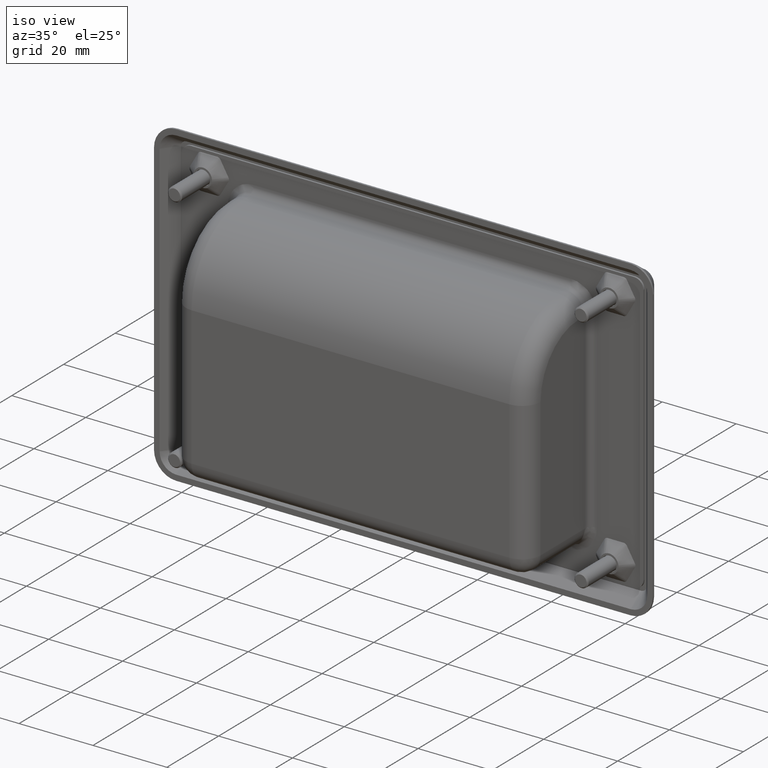
[diagram: clean part render]
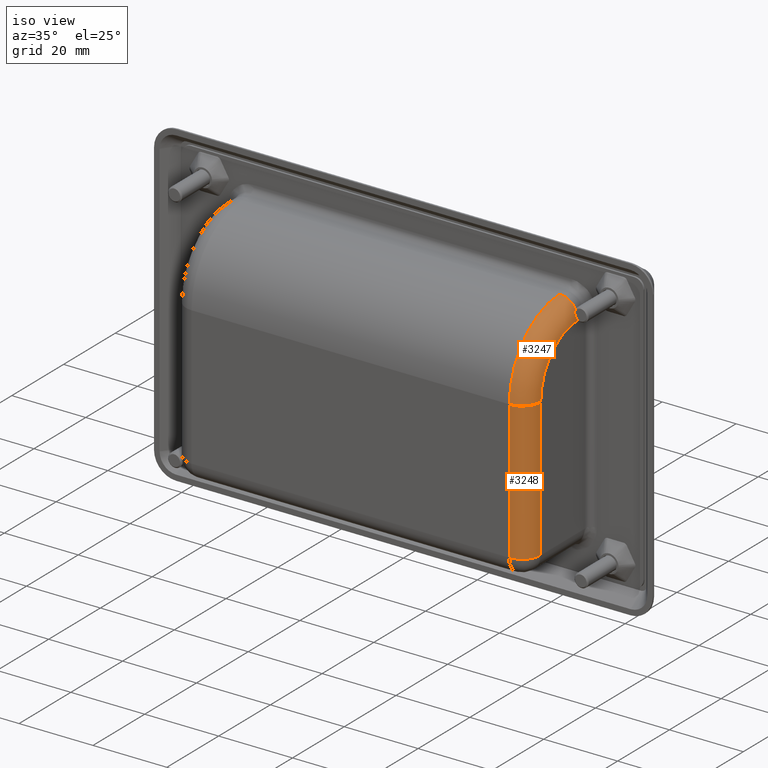
[diagram: same view with one multi-face feature highlighted, each face labeled with its STEP entity id]
A machine part, iso view. The highlighted faces form ONE feature: a constant-radius fillet chain: 2 tangent blend faces with common blend radius 5 mm. The faces share edges in the B-rep.
Their STEP definitions:
[1] entity #3247 (Torus):
#30=TOROIDAL_SURFACE('',#3533,14.5,5.);
#432=FACE_OUTER_BOUND('',#656,.T.);
#656=EDGE_LOOP('',(#2901,#2902,#2903,#2904));
#1319=CIRCLE('',#3532,5.);
#1320=CIRCLE('',#3534,5.);
#1321=CIRCLE('',#3535,14.5);
#1322=CIRCLE('',#3536,19.5);
#1621=VERTEX_POINT('',#7218);
#1622=VERTEX_POINT('',#7220);
#1623=VERTEX_POINT('',#7224);
#1624=VERTEX_POINT('',#7225);
#2058=EDGE_CURVE('',#1621,#1622,#1319,.T.);
#2060=EDGE_CURVE('',#1623,#1624,#1320,.T.);
#2061=EDGE_CURVE('',#1624,#1622,#1321,.T.);
#2062=EDGE_CURVE('',#1621,#1623,#1322,.T.);
#2901=ORIENTED_EDGE('',*,*,#2060,.T.);
#2902=ORIENTED_EDGE('',*,*,#2061,.T.);
#2903=ORIENTED_EDGE('',*,*,#2058,.F.);
#2904=ORIENTED_EDGE('',*,*,#2062,.T.);
#3247=ADVANCED_FACE('',(#432),#30,.T.);
#3532=AXIS2_PLACEMENT_3D('',#7221,#4303,#4304);
#3533=AXIS2_PLACEMENT_3D('',#7223,#4306,#4307);
#3534=AXIS2_PLACEMENT_3D('',#7226,#4308,#4309);
#3535=AXIS2_PLACEMENT_3D('',#7227,#4310,#4311);
#3536=AXIS2_PLACEMENT_3D('',#7228,#4312,#4313);
#4303=DIRECTION('center_axis',(0.,1.,0.));
#4304=DIRECTION('ref_axis',(0.,0.,1.));
#4306=DIRECTION('center_axis',(1.,0.,0.));
#4307=DIRECTION('ref_axis',(0.,0.,-1.));
#4308=DIRECTION('center_axis',(0.,0.,1.));
#4309=DIRECTION('ref_axis',(0.,-1.,0.));
#4310=DIRECTION('center_axis',(-1.,0.,0.));
#4311=DIRECTION('ref_axis',(0.,-0.707106781186548,0.707106781186547));
#4312=DIRECTION('center_axis',(1.,0.,0.));
#4313=DIRECTION('ref_axis',(0.,-0.707106781186548,0.707106781186547));
#7218=CARTESIAN_POINT('',(43.,-4.5,31.));
#7220=CARTESIAN_POINT('',(48.,-4.5,26.));
#7221=CARTESIAN_POINT('Origin',(43.,-4.5,26.));
#7223=CARTESIAN_POINT('Origin',(43.,-4.5,11.5));
#7224=CARTESIAN_POINT('',(43.,-24.,11.5));
#7225=CARTESIAN_POINT('',(48.,-19.,11.5));
#7226=CARTESIAN_POINT('Origin',(43.,-19.,11.5));
#7227=CARTESIAN_POINT('Origin',(48.,-4.5,11.5));
#7228=CARTESIAN_POINT('Origin',(43.,-4.5,11.5));
[2] entity #3248 (Cylinder):
#433=FACE_OUTER_BOUND('',#657,.T.);
#657=EDGE_LOOP('',(#2905,#2906,#2907,#2908));
#915=LINE('',#7230,#1159);
#916=LINE('',#7231,#1160);
#1159=VECTOR('',#4316,37.5);
#1160=VECTOR('',#4317,37.5);
#1318=CIRCLE('',#3530,5.);
#1320=CIRCLE('',#3534,5.);
#1610=VERTEX_POINT('',#7189);
#1620=VERTEX_POINT('',#7214);
#1623=VERTEX_POINT('',#7224);
#1624=VERTEX_POINT('',#7225);
#2056=EDGE_CURVE('',#1620,#1610,#1318,.F.);
#2060=EDGE_CURVE('',#1623,#1624,#1320,.T.);
#2063=EDGE_CURVE('',#1623,#1620,#915,.T.);
#2064=EDGE_CURVE('',#1610,#1624,#916,.T.);
#2905=ORIENTED_EDGE('',*,*,#2060,.F.);
#2906=ORIENTED_EDGE('',*,*,#2063,.T.);
#2907=ORIENTED_EDGE('',*,*,#2056,.T.);
#2908=ORIENTED_EDGE('',*,*,#2064,.T.);
#3068=CYLINDRICAL_SURFACE('',#3537,5.);
#3248=ADVANCED_FACE('',(#433),#3068,.T.);
#3530=AXIS2_PLACEMENT_3D('',#7216,#4298,#4299);
#3534=AXIS2_PLACEMENT_3D('',#7226,#4308,#4309);
#3537=AXIS2_PLACEMENT_3D('',#7229,#4314,#4315);
#4298=DIRECTION('center_axis',(0.,0.,-1.));
#4299=DIRECTION('ref_axis',(0.,-1.,0.));
#4308=DIRECTION('center_axis',(0.,0.,1.));
#4309=DIRECTION('ref_axis',(0.,-1.,0.));
#4314=DIRECTION('center_axis',(0.,0.,1.));
#4315=DIRECTION('ref_axis',(0.707106781186548,-0.707106781186548,0.));
#4316=DIRECTION('',(0.,0.,-1.));
#4317=DIRECTION('',(0.,0.,1.));
#7189=CARTESIAN_POINT('',(48.,-19.,-26.));
#7214=CARTESIAN_POINT('',(43.,-24.,-26.));
#7216=CARTESIAN_POINT('Origin',(43.,-19.,-26.));
#7224=CARTESIAN_POINT('',(43.,-24.,11.5));
#7225=CARTESIAN_POINT('',(48.,-19.,11.5));
#7226=CARTESIAN_POINT('Origin',(43.,-19.,11.5));
#7229=CARTESIAN_POINT('Origin',(43.,-19.,-15.5));
#7230=CARTESIAN_POINT('',(43.,-24.,-15.5));
#7231=CARTESIAN_POINT('',(48.,-19.,-15.5));